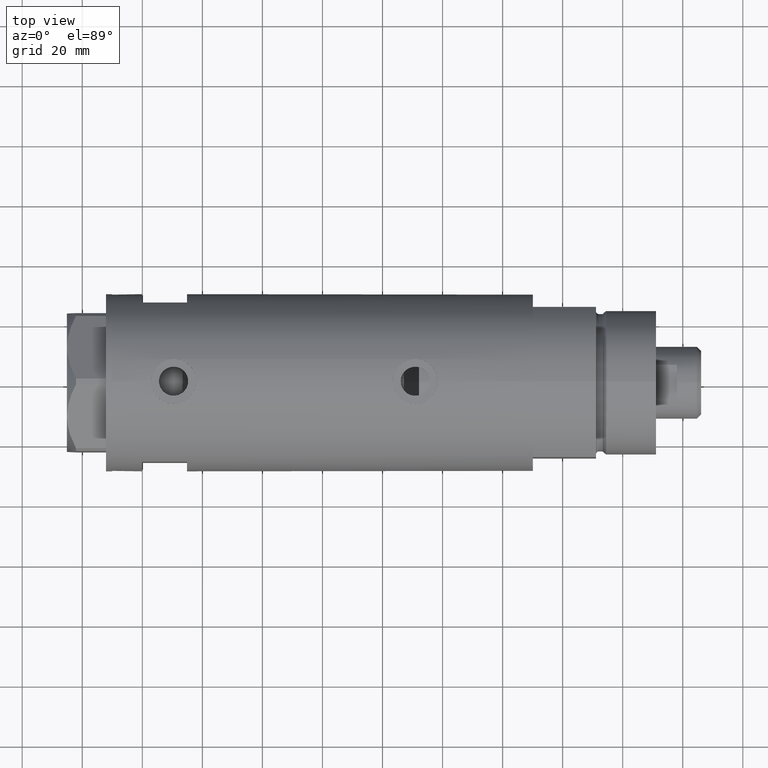
[diagram: clean part render]
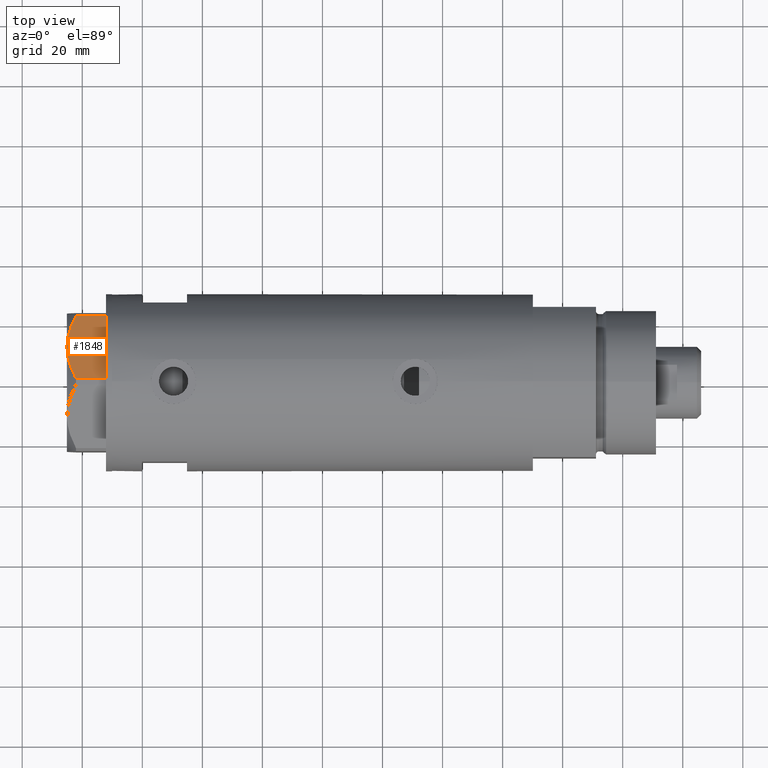
[diagram: same view with one face highlighted and labeled with its STEP entity id]
A machine part, top view. The second image highlights one B-rep face of the part: STEP entity #1848.
In plain terms, the highlighted planar face has unit normal (-0, -0.5, -0.866).
Its self-contained STEP definition (entity closure, byte-faithful):
#12 = VECTOR ( 'NONE', #2632, 999.9999999999998863 ) ;
#32 = EDGE_CURVE ( 'NONE', #68, #4439, #5042, .T. ) ;
#68 = VERTEX_POINT ( 'NONE', #3620 ) ;
#90 = DIRECTION ( 'NONE',  ( 0.000000000000000000, 0.000000000000000000, 1.000000000000000000 ) ) ;
#112 = ORIENTED_EDGE ( 'NONE', *, *, #404, .F. ) ;
#306 = ORIENTED_EDGE ( 'NONE', *, *, #4139, .T. ) ;
#404 = EDGE_CURVE ( 'NONE', #2559, #3690, #3138, .T. ) ;
#713 = CARTESIAN_POINT ( 'NONE',  ( 13.32175508098997518, -18.86679350063487703, 13.00000000000009059 ) ) ;
#789 = CARTESIAN_POINT ( 'NONE',  ( 22.03005154776154129, -13.83905619136115384, 9.983800287807621743 ) ) ;
#793 = LINE ( 'NONE', #3578, #12 ) ;
#823 = CARTESIAN_POINT ( 'NONE',  ( 2.626494320835804253, -25.04170517956326236, 10.87778242614345636 ) ) ;
#1381 = LINE ( 'NONE', #4158, #3668 ) ;
#1397 = CARTESIAN_POINT ( 'NONE',  ( 7.836767740116727943, -22.03355241838979595, 12.63731396715694544 ) ) ;
#1430 = VECTOR ( 'NONE', #90, 1000.000000000000000 ) ;
#1446 = PLANE ( 'NONE',  #2403 ) ;
#1597 = CARTESIAN_POINT ( 'NONE',  ( 15.11535457301044616, -17.83125835109845880, 12.70765172847700342 ) ) ;
#1766 = CARTESIAN_POINT ( 'NONE',  ( 10.58093321976977030, -20.44920774001120023, 12.98168640760949799 ) ) ;
#1794 = CARTESIAN_POINT ( 'NONE',  ( 11.50000000000018296, -19.91858428704203732, 13.00000000000000000 ) ) ;
#1799 = EDGE_LOOP ( 'NONE', ( #112, #306, #4337, #3619, #4011 ) ) ;
#1807 = DIRECTION ( 'NONE',  ( 0.000000000000000000, 0.000000000000000000, -1.000000000000000000 ) ) ;
#1848 = ADVANCED_FACE ( 'NONE', ( #5078 ), #1446, .F. ) ;
#2313 = CARTESIAN_POINT ( 'NONE',  ( 4.320186229910045306, -24.06385169993492568, 11.62937486882610649 ) ) ;
#2403 = AXIS2_PLACEMENT_3D ( 'NONE', #3275, #5112, #2805 ) ;
#2558 = CARTESIAN_POINT ( 'NONE',  ( 19.07486218897005870, -15.54523556316577171, 11.39727285399141365 ) ) ;
#2559 = VERTEX_POINT ( 'NONE', #5583 ) ;
#2632 = DIRECTION ( 'NONE',  ( 0.8660254037844345998, 0.5000000000000069944, 0.000000000000000000 ) ) ;
#2805 = DIRECTION ( 'NONE',  ( -0.8660254037844345998, -0.5000000000000069944, 0.000000000000000000 ) ) ;
#3052 = CARTESIAN_POINT ( 'NONE',  ( 20.35958612119338085, -14.80349985506226673, 10.84420102443838552 ) ) ;
#3138 = B_SPLINE_CURVE_WITH_KNOTS ( 'NONE', 3,
 ( #5033, #823, #2313, #4119, #1397, #4058, #5865, #1766, #5890, #1794 ),
 .UNSPECIFIED., .F., .F.,
 ( 4, 2, 2, 2, 4 ),
 ( 0.001228959670438509785, 0.007497079744270810156, 0.01063113978118696706, 0.01219816979964504465, 0.01376519981810312224 ),
 .UNSPECIFIED. ) ;
#3275 = CARTESIAN_POINT ( 'NONE',  ( 1.854543075583504180E-13, -26.55811238272274366, 13.00000000000000000 ) ) ;
#3295 = EDGE_CURVE ( 'NONE', #4022, #68, #793, .T. ) ;
#3470 = CARTESIAN_POINT ( 'NONE',  ( 18.64279229058406173, -15.79469123530766517, 11.57055225522972286 ) ) ;
#3578 = CARTESIAN_POINT ( 'NONE',  ( 1.854543075583504180E-13, -26.55811238272274366, 0.000000000000000000 ) ) ;
#3619 = ORIENTED_EDGE ( 'NONE', *, *, #32, .T. ) ;
#3620 = CARTESIAN_POINT ( 'NONE',  ( 22.03005154776153773, -13.83905619136115561, 0.000000000000000000 ) ) ;
#3668 = VECTOR ( 'NONE', #1807, 1000.000000000000000 ) ;
#3690 = VERTEX_POINT ( 'NONE', #5346 ) ;
#3890 = CARTESIAN_POINT ( 'NONE',  ( 17.32831362639728923, -16.55360584591992890, 12.04068176582933525 ) ) ;
#4011 = ORIENTED_EDGE ( 'NONE', *, *, #5151, .F. ) ;
#4022 = VERTEX_POINT ( 'NONE', #5308 ) ;
#4029 = B_SPLINE_CURVE_WITH_KNOTS ( 'NONE', 3,
 ( #4338, #713, #1597, #3890, #5332, #3470, #2558, #3052, #5364, #4362 ),
 .UNSPECIFIED., .F., .F.,
 ( 4, 2, 2, 2, 4 ),
 ( 0.01376519981810312224, 0.01998941321701590279, 0.02154546656674409533, 0.02310151991647228786, 0.02621362661592867294 ),
 .UNSPECIFIED. ) ;
#4058 = CARTESIAN_POINT ( 'NONE',  ( 9.197898616903064095, -21.24770314027487927, 12.85271263895580240 ) ) ;
#4093 = CARTESIAN_POINT ( 'NONE',  ( 22.03005154776153773, -13.83905619136115739, 13.00000000000000000 ) ) ;
#4119 = CARTESIAN_POINT ( 'NONE',  ( 6.946777556903778184, -22.54738849024392877, 12.42689993760377654 ) ) ;
#4139 = EDGE_CURVE ( 'NONE', #2559, #4022, #1381, .T. ) ;
#4158 = CARTESIAN_POINT ( 'NONE',  ( 0.9699484522387532559, -25.99811238272273428, 13.00000000000000000 ) ) ;
#4337 = ORIENTED_EDGE ( 'NONE', *, *, #3295, .T. ) ;
#4338 = CARTESIAN_POINT ( 'NONE',  ( 11.50000000000018296, -19.91858428704203732, 13.00000000000000000 ) ) ;
#4362 = CARTESIAN_POINT ( 'NONE',  ( 22.03005154776154129, -13.83905619136115384, 9.983800287807621743 ) ) ;
#4439 = VERTEX_POINT ( 'NONE', #789 ) ;
#5033 = CARTESIAN_POINT ( 'NONE',  ( 0.9699484522386113694, -25.99811238272281955, 9.983800287807545359 ) ) ;
#5042 = LINE ( 'NONE', #4093, #1430 ) ;
#5078 = FACE_OUTER_BOUND ( 'NONE', #1799, .T. ) ;
#5112 = DIRECTION ( 'NONE',  ( -0.5000000000000069944, 0.8660254037844345998, 0.000000000000000000 ) ) ;
#5151 = EDGE_CURVE ( 'NONE', #3690, #4439, #4029, .T. ) ;
#5308 = CARTESIAN_POINT ( 'NONE',  ( 0.9699484522387533669, -25.99811238272273428, 0.000000000000000000 ) ) ;
#5332 = CARTESIAN_POINT ( 'NONE',  ( 17.77001848220202618, -16.29858742851869735, 11.89212886775844780 ) ) ;
#5346 = CARTESIAN_POINT ( 'NONE',  ( 11.50000000000018296, -19.91858428704203732, 13.00000000000000000 ) ) ;
#5364 = CARTESIAN_POINT ( 'NONE',  ( 21.20080365460329475, -14.31782268570100491, 10.43131750950939107 ) ) ;
#5583 = CARTESIAN_POINT ( 'NONE',  ( 0.9699484522386113694, -25.99811238272281955, 9.983800287807545359 ) ) ;
#5865 = CARTESIAN_POINT ( 'NONE',  ( 9.656518383329991906, -20.98291889467260773, 12.90784227772843451 ) ) ;
#5890 = CARTESIAN_POINT ( 'NONE',  ( 11.04134848610952879, -20.18338686205092358, 13.00000000000009059 ) ) ;